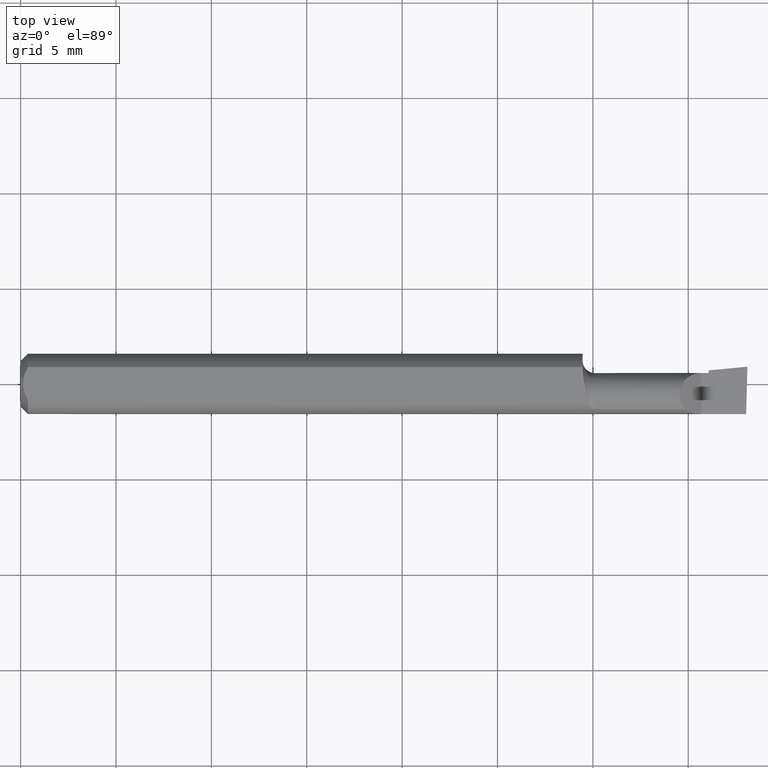
[diagram: clean part render]
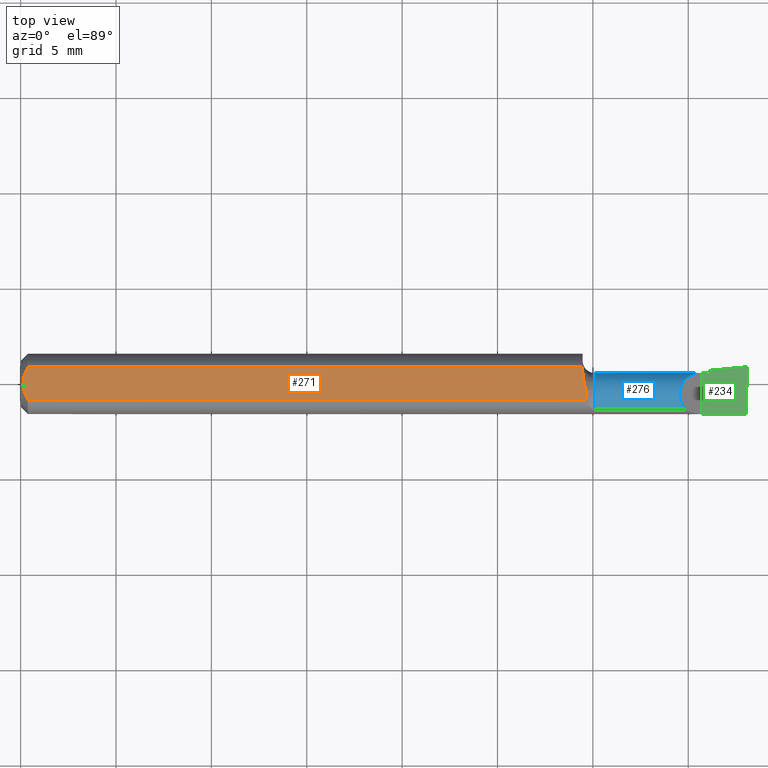
[diagram: same view with three faces highlighted in distinct colors, each labeled with its STEP entity id]
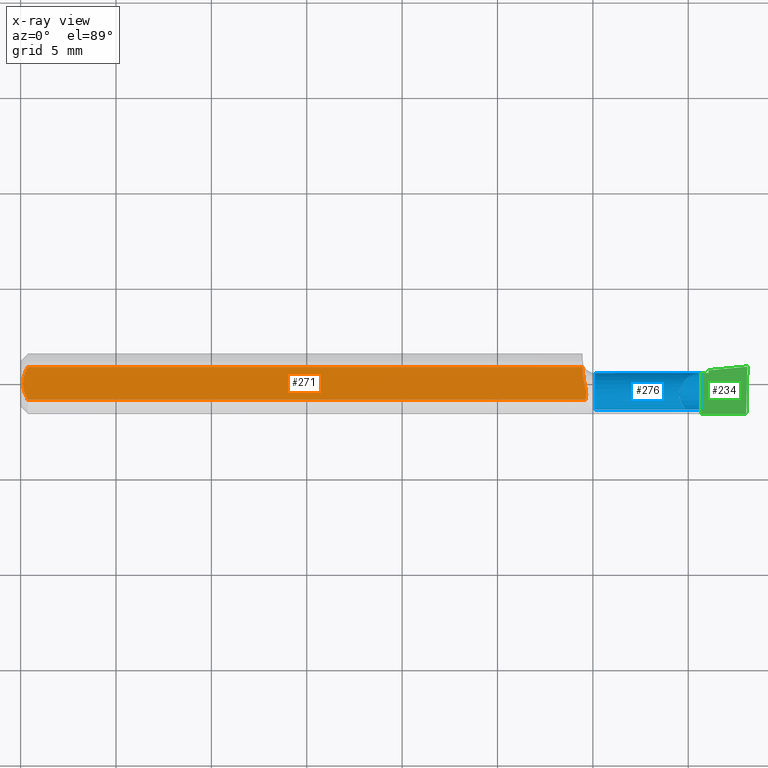
[diagram: x-ray of the same camera — body ghosted, the three highlighted faces saturated]
A machine part, top view with three faces highlighted in distinct colors.
The next image is the same camera in x-ray (body ghosted, the three faces saturated) — at least one of them is partly hidden behind the body in this view.
Their STEP definitions:

[orange] entity #271 — the highlighted planar face has unit normal (0, -0, -1).
#5 = CARTESIAN_POINT ( 'NONE',  ( 1.160000000000000142, 0.02414546164772669867, 0.05235000000000000070 ) ) ;
#25 = PLANE ( 'NONE',  #360 ) ;
#33 = EDGE_CURVE ( 'NONE', #56, #489, #148, .T. ) ;
#34 = CARTESIAN_POINT ( 'NONE',  ( 0.004999999999989931769, 7.898418181085889318E-16, 0.05235000000000000070 ) ) ;
#56 = VERTEX_POINT ( 'NONE', #5 ) ;
#79 = CARTESIAN_POINT ( 'NONE',  ( 1.160000000000000142, 0.03386738844375224156, 0.05235000000000000070 ) ) ;
#84 = EDGE_LOOP ( 'NONE', ( #458, #362, #281, #286, #496, #523 ) ) ;
#107 = CARTESIAN_POINT ( 'NONE',  ( 0.004999999999989931769, 7.898418181085889318E-16, 0.05235000000000000070 ) ) ;
#143 = CARTESIAN_POINT ( 'NONE',  ( 1.162747134522028158, 0.004017454403653755550, 0.05235000000000000070 ) ) ;
#148 = B_SPLINE_CURVE_WITH_KNOTS ( 'NONE', 3,
 ( #375, #424, #229, #325, #143, #285, #236, #508, #455, #511, #179, #602, #559, #328 ),
 .UNSPECIFIED., .F., .F.,
 ( 4, 2, 2, 2, 2, 2, 4 ),
 ( 0.008234143088603517943, 0.008591734916881399106, 0.008770530831020339688, 0.008859928788089808244, 0.008949326745159276800, 0.009306918573437151024, 0.009664510401715023513 ),
 .UNSPECIFIED. ) ;
#152 = CARTESIAN_POINT ( 'NONE',  ( 0.0000000000000000000, 0.03386738844375223462, 0.05234999999999997988 ) ) ;
#156 = CARTESIAN_POINT ( 'NONE',  ( 0.009678036133109307534, -0.02325481837211496039, 0.05235000000000000070 ) ) ;
#164 = CARTESIAN_POINT ( 'NONE',  ( 0.01500000000000185039, -0.03386738844380016850, 0.05235000000000000070 ) ) ;
#168 = DIRECTION ( 'NONE',  ( 5.691349986800549142E-18, -1.000000000000000000, 7.598598113218357399E-17 ) ) ;
#179 = CARTESIAN_POINT ( 'NONE',  ( 1.167029704074272312, -0.01497150789875726501, 0.05235000000000000764 ) ) ;
#190 = LINE ( 'NONE', #152, #226 ) ;
#196 = VERTEX_POINT ( 'NONE', #107 ) ;
#198 = CARTESIAN_POINT ( 'NONE',  ( 0.004999999999998879473, -0.005957634400466955450, 0.05235000000000000070 ) ) ;
#199 = DIRECTION ( 'NONE',  ( 0.0000000000000000000, 1.000000000000000000, -7.598598113218357399E-17 ) ) ;
#202 = EDGE_CURVE ( 'NONE', #219, #409, #190, .T. ) ;
#214 = CARTESIAN_POINT ( 'NONE',  ( 0.006064493299689842180, 0.01189382783781397189, 0.05235000000000000070 ) ) ;
#218 = B_SPLINE_CURVE_WITH_KNOTS ( 'NONE', 3,
 ( #34, #450, #214, #257, #313, #359 ),
 .UNSPECIFIED., .F., .F.,
 ( 4, 2, 4 ),
 ( 0.003037199019464981685, 0.003488061124369676216, 0.003938923229274370746 ),
 .UNSPECIFIED. ) ;
#219 = VERTEX_POINT ( 'NONE', #247 ) ;
#226 = VECTOR ( 'NONE', #470, 39.37007874015748143 ) ;
#229 = CARTESIAN_POINT ( 'NONE',  ( 1.160684336333183353, 0.01400540109987314513, 0.05234999999999997294 ) ) ;
#236 = CARTESIAN_POINT ( 'NONE',  ( 1.163943373083575095, -0.0009488278625736960240, 0.05235000000000000070 ) ) ;
#247 = CARTESIAN_POINT ( 'NONE',  ( 0.01500000000000000465, 0.03386738844375223462, 0.05234999999999997988 ) ) ;
#248 = VECTOR ( 'NONE', #168, 39.37007874015748143 ) ;
#249 = EDGE_CURVE ( 'NONE', #318, #196, #371, .T. ) ;
#257 = CARTESIAN_POINT ( 'NONE',  ( 0.009669996313769784607, 0.02323004575534281385, 0.05234999999999998682 ) ) ;
#271 = ADVANCED_FACE ( 'NONE', ( #472 ), #25, .F. ) ;
#275 = CARTESIAN_POINT ( 'NONE',  ( 1.166182189689074944, -0.03386738844375222074, 0.05235000000000000070 ) ) ;
#281 = ORIENTED_EDGE ( 'NONE', *, *, #202, .F. ) ;
#285 = CARTESIAN_POINT ( 'NONE',  ( 1.163640393495456893, 0.0002918085034138108089, 0.05234999999999998682 ) ) ;
#286 = ORIENTED_EDGE ( 'NONE', *, *, #337, .F. ) ;
#303 = EDGE_CURVE ( 'NONE', #409, #56, #377, .T. ) ;
#313 = CARTESIAN_POINT ( 'NONE',  ( 0.01218518006020415795, 0.02868529347538067639, 0.05235000000000000070 ) ) ;
#318 = VERTEX_POINT ( 'NONE', #164 ) ;
#325 = CARTESIAN_POINT ( 'NONE',  ( 1.162172826817815530, 0.006508548278878179515, 0.05235000000000000070 ) ) ;
#328 = CARTESIAN_POINT ( 'NONE',  ( 1.166182189689074944, -0.03386738844375222074, 0.05235000000000000070 ) ) ;
#337 = EDGE_CURVE ( 'NONE', #196, #219, #218, .T. ) ;
#359 = CARTESIAN_POINT ( 'NONE',  ( 0.01500000000000000465, 0.03386738844375223462, 0.05234999999999997988 ) ) ;
#360 = AXIS2_PLACEMENT_3D ( 'NONE', #539, #401, #199 ) ;
#362 = ORIENTED_EDGE ( 'NONE', *, *, #303, .F. ) ;
#366 = LINE ( 'NONE', #408, #597 ) ;
#371 = B_SPLINE_CURVE_WITH_KNOTS ( 'NONE', 3,
 ( #441, #534, #156, #442, #198, #485 ),
 .UNSPECIFIED., .F., .F.,
 ( 4, 2, 4 ),
 ( 0.002133667072902290657, 0.002585433046183636171, 0.003037199019464981685 ),
 .UNSPECIFIED. ) ;
#375 = CARTESIAN_POINT ( 'NONE',  ( 1.160000000000000142, 0.02414546164772669867, 0.05235000000000000070 ) ) ;
#377 = LINE ( 'NONE', #592, #248 ) ;
#401 = DIRECTION ( 'NONE',  ( 0.0000000000000000000, -7.598598113218357399E-17, -1.000000000000000000 ) ) ;
#407 = EDGE_CURVE ( 'NONE', #489, #318, #366, .T. ) ;
#408 = CARTESIAN_POINT ( 'NONE',  ( 0.0000000000000000000, -0.03386738844375222768, 0.05234999999999997988 ) ) ;
#409 = VERTEX_POINT ( 'NONE', #79 ) ;
#424 = CARTESIAN_POINT ( 'NONE',  ( 1.159999999999999698, 0.01903747135664268786, 0.05234999999999997988 ) ) ;
#441 = CARTESIAN_POINT ( 'NONE',  ( 0.01500000000000185039, -0.03386738844380016850, 0.05235000000000000070 ) ) ;
#442 = CARTESIAN_POINT ( 'NONE',  ( 0.006057557792978140489, -0.01187252718384441616, 0.05234999999999998682 ) ) ;
#450 = CARTESIAN_POINT ( 'NONE',  ( 0.004999999999999268051, 0.005945714695019511074, 0.05235000000000000070 ) ) ;
#455 = CARTESIAN_POINT ( 'NONE',  ( 1.164818038875745199, -0.004579228880846292898, 0.05234999999999998682 ) ) ;
#458 = ORIENTED_EDGE ( 'NONE', *, *, #33, .F. ) ;
#470 = DIRECTION ( 'NONE',  ( 1.000000000000000000, 0.0000000000000000000, 0.0000000000000000000 ) ) ;
#472 = FACE_OUTER_BOUND ( 'NONE', #84, .T. ) ;
#485 = CARTESIAN_POINT ( 'NONE',  ( 0.004999999999989931769, 7.898418181085889318E-16, 0.05235000000000000070 ) ) ;
#489 = VERTEX_POINT ( 'NONE', #275 ) ;
#496 = ORIENTED_EDGE ( 'NONE', *, *, #249, .F. ) ;
#508 = CARTESIAN_POINT ( 'NONE',  ( 1.164543615195409609, -0.003431463083333073996, 0.05234999999999998682 ) ) ;
#511 = CARTESIAN_POINT ( 'NONE',  ( 1.166144749454604890, -0.01034308142135321670, 0.05235000000000000764 ) ) ;
#523 = ORIENTED_EDGE ( 'NONE', *, *, #407, .F. ) ;
#534 = CARTESIAN_POINT ( 'NONE',  ( 0.01216137397042175820, -0.02864146636719541034, 0.05235000000000000070 ) ) ;
#539 = CARTESIAN_POINT ( 'NONE',  ( 1.500000000000000222, 0.1123499999999999915, 0.05234999999999998682 ) ) ;
#548 = DIRECTION ( 'NONE',  ( -1.000000000000000000, -0.0000000000000000000, -0.0000000000000000000 ) ) ;
#559 = CARTESIAN_POINT ( 'NONE',  ( 1.167065763150420210, -0.02914627190158988052, 0.05235000000000000764 ) ) ;
#592 = CARTESIAN_POINT ( 'NONE',  ( 1.160000000000000142, 0.1123499999999999915, 0.05234999999999998682 ) ) ;
#597 = VECTOR ( 'NONE', #548, 39.37007874015748143 ) ;
#602 = CARTESIAN_POINT ( 'NONE',  ( 1.167516889514667477, -0.02435447415594420642, 0.05235000000000000070 ) ) ;

[blue] entity #276 — the highlighted cylindrical surface (edge-blend (fillet) strip) has radius 1.1443 mm, axis along (-1, -0, -0).
#3 = VECTOR ( 'NONE', #217, 39.37007874015748143 ) ;
#19 = CARTESIAN_POINT ( 'NONE',  ( 1.500000000000000222, -0.02239999999999999630, -0.04504999999999998589 ) ) ;
#24 = EDGE_LOOP ( 'NONE', ( #37, #283, #106, #363, #483, #192, #440, #28, #354, #132 ) ) ;
#28 = ORIENTED_EDGE ( 'NONE', *, *, #43, .F. ) ;
#29 =( BOUNDED_CURVE ( )  B_SPLINE_CURVE ( 3, ( #94, #462, #460, #183 ),
 .UNSPECIFIED., .F., .T. ) 
 B_SPLINE_CURVE_WITH_KNOTS ( ( 4, 4 ),
 ( 5.546277306536651963, 7.853981633974482790 ),
 .UNSPECIFIED. ) 
 CURVE ( )  GEOMETRIC_REPRESENTATION_ITEM ( )  RATIONAL_B_SPLINE_CURVE ( ( 1.000000000000000000, 0.6033122017619988453, 0.6033122017619988453, 1.000000000000000000 ) ) 
 REPRESENTATION_ITEM ( '' )  );
#37 = ORIENTED_EDGE ( 'NONE', *, *, #321, .F. ) ;
#43 = EDGE_CURVE ( 'NONE', #467, #46, #593, .T. ) ;
#46 = VERTEX_POINT ( 'NONE', #49 ) ;
#48 = CARTESIAN_POINT ( 'NONE',  ( 1.420000000000000151, -0.02239999999999999630, 0.0000000000000000000 ) ) ;
#49 = CARTESIAN_POINT ( 'NONE',  ( 1.420000000000000151, 0.01811171944543688711, -0.01970540757188768421 ) ) ;
#52 = CARTESIAN_POINT ( 'NONE',  ( 1.420000000000000151, -0.02239999999999999630, 0.0000000000000000000 ) ) ;
#54 = VECTOR ( 'NONE', #395, 39.37007874015748143 ) ;
#62 = EDGE_CURVE ( 'NONE', #113, #563, #29, .T. ) ;
#70 = CARTESIAN_POINT ( 'NONE',  ( 1.302500000000000213, -0.05267366071428577351, -0.03336177403790612644 ) ) ;
#81 = CARTESIAN_POINT ( 'NONE',  ( 1.493589448587071988, -0.05267366071428577351, -0.03336177403790612644 ) ) ;
#86 = CARTESIAN_POINT ( 'NONE',  ( 1.493589448587071988, -0.05267366071428577351, -0.03336177403790612644 ) ) ;
#88 = DIRECTION ( 'NONE',  ( -1.000000000000000000, -5.691349986800549142E-18, -0.0000000000000000000 ) ) ;
#94 = CARTESIAN_POINT ( 'NONE',  ( 1.371638225962093838, -0.05267366071428578739, 0.03336177403790611951 ) ) ;
#100 = EDGE_CURVE ( 'NONE', #563, #111, #317, .T. ) ;
#106 = ORIENTED_EDGE ( 'NONE', *, *, #557, .F. ) ;
#108 = CARTESIAN_POINT ( 'NONE',  ( -2.563953169053420290E-19, 0.02264999999999996183, 1.836970198721030427E-16 ) ) ;
#111 = VERTEX_POINT ( 'NONE', #477 ) ;
#113 = VERTEX_POINT ( 'NONE', #471 ) ;
#116 = DIRECTION ( 'NONE',  ( -1.000000000000000000, 5.691349986800548372E-18, -0.0000000000000000000 ) ) ;
#125 = EDGE_CURVE ( 'NONE', #111, #46, #273, .T. ) ;
#132 = ORIENTED_EDGE ( 'NONE', *, *, #260, .F. ) ;
#134 = CARTESIAN_POINT ( 'NONE',  ( 1.420000000000000151, -0.001476535193822992769, -0.03989625446711344420 ) ) ;
#142 = DIRECTION ( 'NONE',  ( 0.0000000000000000000, -1.000000000000000000, 1.776356839400250465E-15 ) ) ;
#159 = DIRECTION ( 'NONE',  ( -1.000000000000000000, -5.691349986800549142E-18, -0.0000000000000000000 ) ) ;
#160 = VERTEX_POINT ( 'NONE', #434 ) ;
#171 = AXIS2_PLACEMENT_3D ( 'NONE', #194, #394, #428 ) ;
#183 = CARTESIAN_POINT ( 'NONE',  ( 1.405000000000000249, 0.02264999999999992714, 1.163414459189985436E-17 ) ) ;
#192 = ORIENTED_EDGE ( 'NONE', *, *, #100, .T. ) ;
#194 = CARTESIAN_POINT ( 'NONE',  ( 1.420000000000000151, -0.02239999999999999630, 0.0000000000000000000 ) ) ;
#210 = CARTESIAN_POINT ( 'NONE',  ( 1.492946566646605078, -0.02239999999999999630, -0.04504999999999998589 ) ) ;
#217 = DIRECTION ( 'NONE',  ( 1.000000000000000000, 5.691349986800549142E-18, 0.0000000000000000000 ) ) ;
#233 = DIRECTION ( 'NONE',  ( 1.000000000000000000, 5.691349986800549142E-18, 0.0000000000000000000 ) ) ;
#260 = EDGE_CURVE ( 'NONE', #443, #267, #553, .T. ) ;
#266 = CARTESIAN_POINT ( 'NONE',  ( 1.492874371667014088, -0.04428776192107811843, -0.04097143695815294584 ) ) ;
#267 = VERTEX_POINT ( 'NONE', #481 ) ;
#273 = CIRCLE ( 'NONE', #171, 0.04504999999999999283 ) ;
#276 = ADVANCED_FACE ( 'NONE', ( #420 ), #330, .T. ) ;
#279 = EDGE_CURVE ( 'NONE', #355, #569, #353, .T. ) ;
#280 = DIRECTION ( 'NONE',  ( -1.000000000000000000, -5.691349986800549142E-18, -0.0000000000000000000 ) ) ;
#283 = ORIENTED_EDGE ( 'NONE', *, *, #279, .T. ) ;
#289 = DIRECTION ( 'NONE',  ( 0.0000000000000000000, -1.000000000000000000, 0.0000000000000000000 ) ) ;
#309 = CIRCLE ( 'NONE', #368, 0.04504999999999996507 ) ;
#311 = CARTESIAN_POINT ( 'NONE',  ( 1.492946566646605078, -0.02239999999999999630, -0.04504999999999998589 ) ) ;
#317 = LINE ( 'NONE', #108, #543 ) ;
#321 = EDGE_CURVE ( 'NONE', #355, #443, #550, .T. ) ;
#327 = CARTESIAN_POINT ( 'NONE',  ( 1.185000000000000275, -0.05267366071428582902, -0.03336177403790607787 ) ) ;
#330 = CYLINDRICAL_SURFACE ( 'NONE', #400, 0.04504999999999997201 ) ;
#347 = DIRECTION ( 'NONE',  ( 5.691349986800549913E-18, -1.000000000000000000, 0.0000000000000000000 ) ) ;
#348 = CIRCLE ( 'NONE', #585, 0.04504999999999999283 ) ;
#350 = CARTESIAN_POINT ( 'NONE',  ( 1.492650040401417133, -0.03372388044486963193, -0.04504999999999997201 ) ) ;
#353 = LINE ( 'NONE', #70, #54 ) ;
#354 = ORIENTED_EDGE ( 'NONE', *, *, #421, .T. ) ;
#355 = VERTEX_POINT ( 'NONE', #86 ) ;
#358 = EDGE_CURVE ( 'NONE', #160, #113, #491, .T. ) ;
#363 = ORIENTED_EDGE ( 'NONE', *, *, #358, .T. ) ;
#368 = AXIS2_PLACEMENT_3D ( 'NONE', #518, #280, #289 ) ;
#394 = DIRECTION ( 'NONE',  ( -1.000000000000000000, -5.691349986800549142E-18, -0.0000000000000000000 ) ) ;
#395 = DIRECTION ( 'NONE',  ( -1.000000000000000000, -5.691349986800549142E-18, -0.0000000000000000000 ) ) ;
#400 = AXIS2_PLACEMENT_3D ( 'NONE', #538, #159, #347 ) ;
#402 = AXIS2_PLACEMENT_3D ( 'NONE', #52, #233, #142 ) ;
#420 = FACE_OUTER_BOUND ( 'NONE', #24, .T. ) ;
#421 = EDGE_CURVE ( 'NONE', #467, #267, #348, .T. ) ;
#425 = CARTESIAN_POINT ( 'NONE',  ( 1.405000000000000249, 0.02264999999999992714, 1.163414459189985436E-17 ) ) ;
#428 = DIRECTION ( 'NONE',  ( 0.0000000000000000000, -1.000000000000000000, 0.0000000000000000000 ) ) ;
#432 = DIRECTION ( 'NONE',  ( 1.000000000000000000, 5.691349986800549142E-18, 0.0000000000000000000 ) ) ;
#434 = CARTESIAN_POINT ( 'NONE',  ( 1.185000000000000275, -0.05267366071428575963, 0.03336177403790613338 ) ) ;
#440 = ORIENTED_EDGE ( 'NONE', *, *, #125, .T. ) ;
#443 = VERTEX_POINT ( 'NONE', #210 ) ;
#446 = VECTOR ( 'NONE', #116, 39.37007874015748143 ) ;
#454 = DIRECTION ( 'NONE',  ( 0.0000000000000000000, -1.000000000000000000, 0.0000000000000000000 ) ) ;
#460 = CARTESIAN_POINT ( 'NONE',  ( 1.359483931624303699, 0.02264999999999997571, 0.04551606837569584230 ) ) ;
#462 = CARTESIAN_POINT ( 'NONE',  ( 1.341051366671215384, -0.01896673977657555368, 0.06394863332878404638 ) ) ;
#467 = VERTEX_POINT ( 'NONE', #134 ) ;
#471 = CARTESIAN_POINT ( 'NONE',  ( 1.371638225962093838, -0.05267366071428578739, 0.03336177403790611951 ) ) ;
#477 = CARTESIAN_POINT ( 'NONE',  ( 1.420000000000000151, 0.02265000000000000346, 1.836970198721031660E-16 ) ) ;
#481 = CARTESIAN_POINT ( 'NONE',  ( 1.420000000000000151, -0.02239999999999999630, -0.04504999999999998589 ) ) ;
#483 = ORIENTED_EDGE ( 'NONE', *, *, #62, .T. ) ;
#491 = LINE ( 'NONE', #542, #3 ) ;
#518 = CARTESIAN_POINT ( 'NONE',  ( 1.185000000000000275, -0.02239999999999999630, 0.0000000000000000000 ) ) ;
#538 = CARTESIAN_POINT ( 'NONE',  ( 0.0000000000000000000, -0.02240000000000000324, 0.0000000000000000000 ) ) ;
#542 = CARTESIAN_POINT ( 'NONE',  ( 1.302500000000000213, -0.05267366071428577351, 0.03336177403790612644 ) ) ;
#543 = VECTOR ( 'NONE', #432, 39.37007874015748143 ) ;
#550 =( BOUNDED_CURVE ( )  B_SPLINE_CURVE ( 3, ( #81, #266, #350, #311 ),
 .UNSPECIFIED., .F., .F. ) 
 B_SPLINE_CURVE_WITH_KNOTS ( ( 4, 4 ),
 ( 5.756326750816668003, 6.493234751459600496 ),
 .UNSPECIFIED. ) 
 CURVE ( )  GEOMETRIC_REPRESENTATION_ITEM ( )  RATIONAL_B_SPLINE_CURVE ( ( 1.000000000000000000, 0.9552568590268901705, 0.9552568590268901705, 1.000000000000000000 ) ) 
 REPRESENTATION_ITEM ( '' )  );
#553 = LINE ( 'NONE', #19, #446 ) ;
#557 = EDGE_CURVE ( 'NONE', #160, #569, #309, .T. ) ;
#563 = VERTEX_POINT ( 'NONE', #425 ) ;
#569 = VERTEX_POINT ( 'NONE', #327 ) ;
#585 = AXIS2_PLACEMENT_3D ( 'NONE', #48, #88, #454 ) ;
#593 = CIRCLE ( 'NONE', #402, 0.04504999999999997201 ) ;

[green] entity #234 — the highlighted planar face has unit normal (-0, 0, -1).
#31 = DIRECTION ( 'NONE',  ( 0.9953961983671786307, 0.09584575252022466130, -1.219008768213809603E-16 ) ) ;
#45 = CARTESIAN_POINT ( 'NONE',  ( 1.405000000000000249, -0.2500000000000000555, 1.163414459189985436E-17 ) ) ;
#55 = ORIENTED_EDGE ( 'NONE', *, *, #497, .F. ) ;
#65 = DIRECTION ( 'NONE',  ( 0.02617694830784732946, 0.9996573249755579260, -3.158139334220721443E-18 ) ) ;
#68 = VECTOR ( 'NONE', #270, 39.37007874015748143 ) ;
#72 = EDGE_LOOP ( 'NONE', ( #228, #447, #147, #332, #475, #55 ) ) ;
#83 = LINE ( 'NONE', #573, #163 ) ;
#100 = EDGE_CURVE ( 'NONE', #563, #111, #317, .T. ) ;
#108 = CARTESIAN_POINT ( 'NONE',  ( -2.563953169053420290E-19, 0.02264999999999996183, 1.836970198721030427E-16 ) ) ;
#111 = VERTEX_POINT ( 'NONE', #477 ) ;
#115 = VECTOR ( 'NONE', #600, 39.37007874015748143 ) ;
#120 = DIRECTION ( 'NONE',  ( -1.000000000000000000, 0.0000000000000000000, 1.224646799147353947E-16 ) ) ;
#128 = DIRECTION ( 'NONE',  ( -1.000000000000000000, -0.0000000000000000000, -0.0000000000000000000 ) ) ;
#147 = ORIENTED_EDGE ( 'NONE', *, *, #296, .F. ) ;
#150 = EDGE_CURVE ( 'NONE', #515, #161, #83, .T. ) ;
#161 = VERTEX_POINT ( 'NONE', #387 ) ;
#163 = VECTOR ( 'NONE', #65, 39.37007874015748854 ) ;
#166 = CARTESIAN_POINT ( 'NONE',  ( 2.249639673992788601E-32, -0.06234999999999999570, 1.836970198721030427E-16 ) ) ;
#172 = CARTESIAN_POINT ( 'NONE',  ( 1.497433779686218935, -0.06235000000000005121, 3.231995301756471648E-19 ) ) ;
#177 = CARTESIAN_POINT ( 'NONE',  ( 1.420000000000000151, 0.02794687614419804830, 1.856802933193678953E-16 ) ) ;
#201 = CARTESIAN_POINT ( 'NONE',  ( 1.500000000000000222, -0.2500000000000000555, 0.0000000000000000000 ) ) ;
#204 = VERTEX_POINT ( 'NONE', #572 ) ;
#208 = VECTOR ( 'NONE', #128, 39.37007874015748143 ) ;
#223 = CARTESIAN_POINT ( 'NONE',  ( 1.420000000000000151, -0.2500000000000000555, 9.797174393178828616E-18 ) ) ;
#228 = ORIENTED_EDGE ( 'NONE', *, *, #334, .F. ) ;
#234 = ADVANCED_FACE ( 'NONE', ( #488 ), #300, .F. ) ;
#262 = VECTOR ( 'NONE', #31, 39.37007874015748854 ) ;
#270 = DIRECTION ( 'NONE',  ( -0.0000000000000000000, 1.000000000000000000, -0.0000000000000000000 ) ) ;
#296 = EDGE_CURVE ( 'NONE', #452, #161, #493, .T. ) ;
#300 = PLANE ( 'NONE',  #414 ) ;
#317 = LINE ( 'NONE', #108, #543 ) ;
#319 = LINE ( 'NONE', #45, #68 ) ;
#332 = ORIENTED_EDGE ( 'NONE', *, *, #526, .F. ) ;
#334 = EDGE_CURVE ( 'NONE', #515, #204, #336, .T. ) ;
#336 = LINE ( 'NONE', #166, #208 ) ;
#387 = CARTESIAN_POINT ( 'NONE',  ( 1.500000000000000444, 0.03565000000000801555, 2.612409678550641086E-14 ) ) ;
#414 = AXIS2_PLACEMENT_3D ( 'NONE', #201, #529, #120 ) ;
#425 = CARTESIAN_POINT ( 'NONE',  ( 1.405000000000000249, 0.02264999999999992714, 1.163414459189985436E-17 ) ) ;
#432 = DIRECTION ( 'NONE',  ( 1.000000000000000000, 5.691349986800549142E-18, 0.0000000000000000000 ) ) ;
#447 = ORIENTED_EDGE ( 'NONE', *, *, #150, .T. ) ;
#452 = VERTEX_POINT ( 'NONE', #177 ) ;
#475 = ORIENTED_EDGE ( 'NONE', *, *, #100, .F. ) ;
#477 = CARTESIAN_POINT ( 'NONE',  ( 1.420000000000000151, 0.02265000000000000346, 1.836970198721031660E-16 ) ) ;
#488 = FACE_OUTER_BOUND ( 'NONE', #72, .T. ) ;
#493 = LINE ( 'NONE', #546, #262 ) ;
#497 = EDGE_CURVE ( 'NONE', #204, #563, #319, .T. ) ;
#515 = VERTEX_POINT ( 'NONE', #172 ) ;
#526 = EDGE_CURVE ( 'NONE', #111, #452, #536, .T. ) ;
#529 = DIRECTION ( 'NONE',  ( -1.224646799147353947E-16, 0.0000000000000000000, -1.000000000000000000 ) ) ;
#536 = LINE ( 'NONE', #223, #115 ) ;
#543 = VECTOR ( 'NONE', #432, 39.37007874015748143 ) ;
#546 = CARTESIAN_POINT ( 'NONE',  ( 0.8971276994979847652, -0.02239999999999999977, 7.383056331043944924E-17 ) ) ;
#563 = VERTEX_POINT ( 'NONE', #425 ) ;
#572 = CARTESIAN_POINT ( 'NONE',  ( 1.405000000000000249, -0.06235000000000005121, 1.163414459189985436E-17 ) ) ;
#573 = CARTESIAN_POINT ( 'NONE',  ( 1.492525117049605665, -0.2498042633013223268, 9.154091479201563202E-19 ) ) ;
#600 = DIRECTION ( 'NONE',  ( -5.691349986800549142E-18, 1.000000000000000000, 6.969893544162626646E-34 ) ) ;